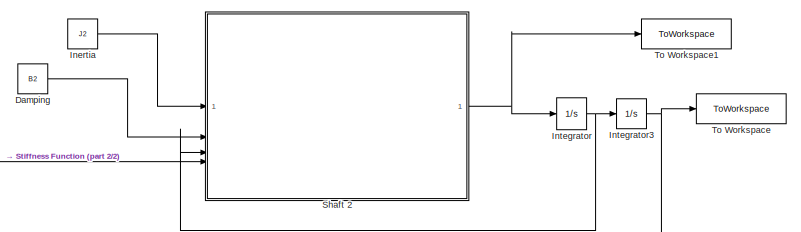
[diagram: root canvas - part 1/2, middle right region]
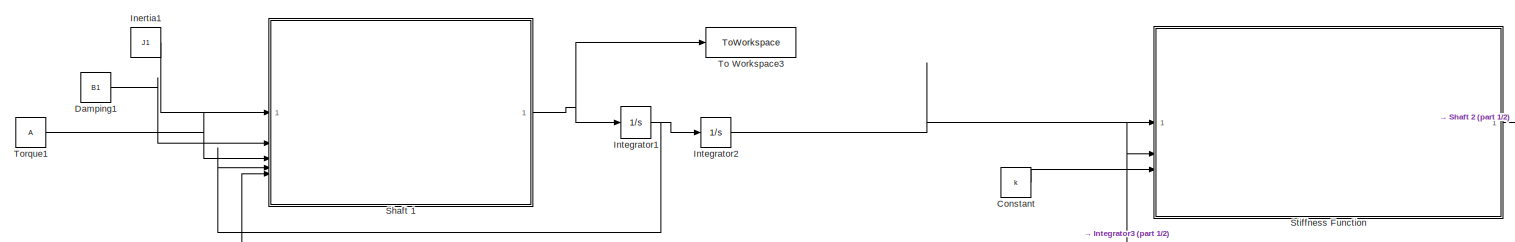
[diagram: root canvas - part 2/2, left side, full height]
MODEL slx_6236413e7977
KIND model
CONFIG AbsTol = auto
CONFIG EnableMultiTasking = off
CONFIG FixedStep = 0.1
CONFIG MaxStep = auto
CONFIG MinStep = auto
CONFIG RelTol = 1e-3
CONFIG SampleTimeConstraint = Unconstrained
CONFIG SolverName = ode4
CONFIG StartTime = 0.0
CONFIG StopTime = 25
BLOCK [Constant] Constant
  Value = k
BLOCK [Constant] Damping
  Value = B2
BLOCK [Constant] Damping1
  Value = B1
BLOCK [Constant] Inertia
  Value = J2
BLOCK [Constant] Inertia1
  Value = J1
BLOCK [Integrator] Integrator
  LimitOutput = on
  UpperSaturationLimit = 1000
BLOCK [Integrator] Integrator1
  LimitOutput = on
  UpperSaturationLimit = 1000
BLOCK [Integrator] Integrator2
BLOCK [Integrator] Integrator3
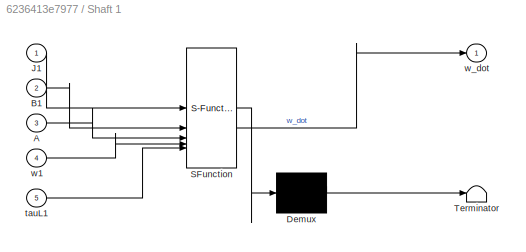
BLOCK [SubSystem] Shaft 1
  ErrorFcn = Stateflow.Translate.translate
  PermitHierarchicalResolution = ExplicitOnly
  SFBlockType = MATLAB Function
  TreatAsAtomicUnit = on
BLOCK [Demux] Shaft 1/ Demux 
  Outputs = 1
BLOCK [S-Function] Shaft 1/ SFunction 
  EnableBusSupport = on
  FunctionName = sf_sfun
  PortCounts = [5 2]
  SFcnIsStateOwnerBlock = off
  SFunctionDeploymentMode = off
  Tag = Stateflow S-Function 1
BLOCK [Terminator] Shaft 1/ Terminator 
BLOCK [Inport] Shaft 1/A
  Port = 3
BLOCK [Inport] Shaft 1/B1
  Port = 2
BLOCK [Inport] Shaft 1/J1
BLOCK [Inport] Shaft 1/tauL1
  Port = 5
BLOCK [Inport] Shaft 1/w1
  Port = 4
BLOCK [Outport] Shaft 1/w_dot
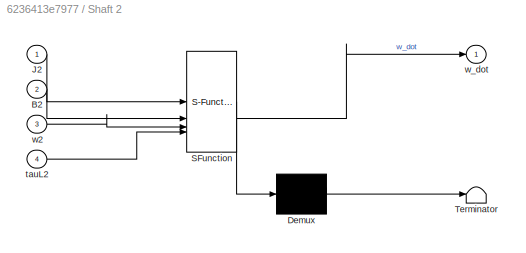
BLOCK [SubSystem] Shaft 2
  ErrorFcn = Stateflow.Translate.translate
  PermitHierarchicalResolution = ExplicitOnly
  SFBlockType = MATLAB Function
  TreatAsAtomicUnit = on
BLOCK [Demux] Shaft 2/ Demux 
  Outputs = 1
BLOCK [S-Function] Shaft 2/ SFunction 
  EnableBusSupport = on
  FunctionName = sf_sfun
  PortCounts = [4 2]
  SFcnIsStateOwnerBlock = off
  SFunctionDeploymentMode = off
  Tag = Stateflow S-Function 2
BLOCK [Terminator] Shaft 2/ Terminator 
BLOCK [Inport] Shaft 2/B2
  Port = 2
BLOCK [Inport] Shaft 2/J2
BLOCK [Inport] Shaft 2/tauL2
  Port = 4
BLOCK [Inport] Shaft 2/w2
  Port = 3
BLOCK [Outport] Shaft 2/w_dot
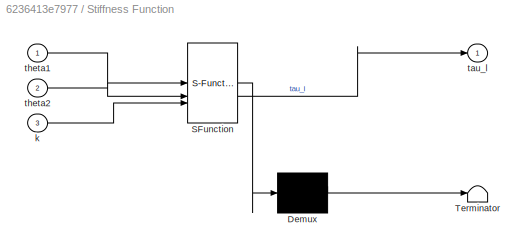
BLOCK [SubSystem] Stiffness Function
  ErrorFcn = Stateflow.Translate.translate
  PermitHierarchicalResolution = ExplicitOnly
  SFBlockType = MATLAB Function
  TreatAsAtomicUnit = on
BLOCK [Demux] Stiffness Function/ Demux 
  Outputs = 1
BLOCK [S-Function] Stiffness Function/ SFunction 
  EnableBusSupport = off
  FunctionName = sf_sfun
  PortCounts = [3 2]
  SFcnIsStateOwnerBlock = off
  SFunctionDeploymentMode = off
  Tag = Stateflow S-Function 3
BLOCK [Terminator] Stiffness Function/ Terminator 
BLOCK [Inport] Stiffness Function/k
  Port = 3
BLOCK [Outport] Stiffness Function/tau_l
BLOCK [Inport] Stiffness Function/theta1
BLOCK [Inport] Stiffness Function/theta2
  Port = 2
BLOCK [ToWorkspace] To Workspace
  FixptAsFi = on
  MaxDataPoints = inf
  SampleTime = -1
  SaveFormat = Structure With Time
  VariableName = w
BLOCK [ToWorkspace] To Workspace1
  FixptAsFi = on
  MaxDataPoints = inf
  SampleTime = -1
  SaveFormat = Structure With Time
  VariableName = w_dot
BLOCK [ToWorkspace] To Workspace3
  FixptAsFi = on
  MaxDataPoints = inf
  SampleTime = -1
  SaveFormat = Structure With Time
  VariableName = w_dot1
BLOCK [Constant] Torque1
  Value = A
LINE Constant:1 -> Stiffness Function:3
LINE Damping1:1 -> Shaft 1:2
LINE Damping:1 -> Shaft 2:2
LINE Inertia1:1 -> Shaft 1:1
LINE Inertia:1 -> Shaft 2:1
NET Integrator1:1 -> Integrator2:1, Shaft 1:4
LINE Integrator2:1 -> Stiffness Function:1
NET Integrator3:1 -> Stiffness Function:2, To Workspace:1
NET Integrator:1 -> Integrator3:1, Shaft 2:3
NET Shaft 1:1 -> Integrator1:1, To Workspace3:1
NET Shaft 2:1 -> Integrator:1, To Workspace1:1
NET Stiffness Function:1 -> Shaft 1:5, Shaft 2:4
LINE Torque1:1 -> Shaft 1:3
note: NET lines group one-source signal fan-out (src -> all destinations, sorted); 1:1 wires keep LINE
CHART Shaft 1 states=1 transitions=1
  STATE_LABEL 'eML_blk_kernel()'
  STATE_LABEL 'SCRIPT:\nfunction w_dot = fcn(J1, B1, A, w1, tauL1)\n\nw_dot = (1/J1)*(A - tauL1 - (B1*w1));\n\nend\n\n'
CHART Shaft 2 states=1 transitions=1
  STATE_LABEL 'eML_blk_kernel()'
  STATE_LABEL 'SCRIPT:\nfunction w_dot = fcn(J2, B2, w2, tauL2)\n\nw_dot = (1/J2)*(tauL2 - (B2*w2));\n\nend\n\n'
CHART Stiffness Function states=1 transitions=1
  STATE_LABEL 'eML_blk_kernel()'
  STATE_LABEL 'SCRIPT:\nfunction tau_l = fcn(theta1, theta2, k)\ntau_1 = k*(theta1 - theta2 - thetal)\ny = u;\n'
CHART  states=0 transitions=0
CHART  states=0 transitions=0
CHART  states=0 transitions=0
